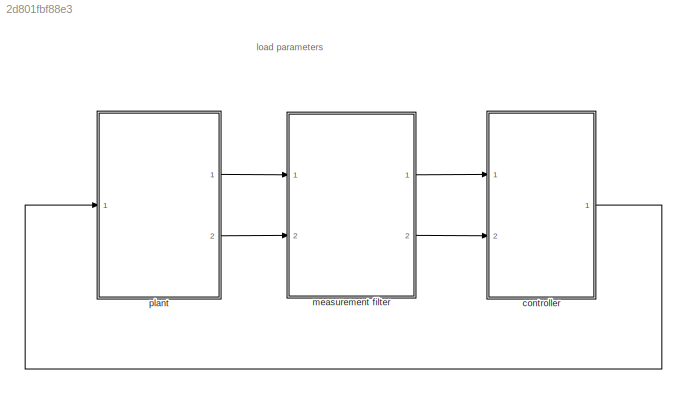
MODEL slx_2d801fbf88e3
KIND model
CONFIG AbsTol = auto
CONFIG EnableMultiTasking = on
CONFIG FixedStep = auto
CONFIG MaxStep = auto
CONFIG MinStep = auto
CONFIG RelTol = 1e-3
CONFIG SampleTimeConstraint = Unconstrained
CONFIG Solver = ode45
CONFIG SolverName = ode45
CONFIG StartTime = 0.0
CONFIG StopTime = 10.0
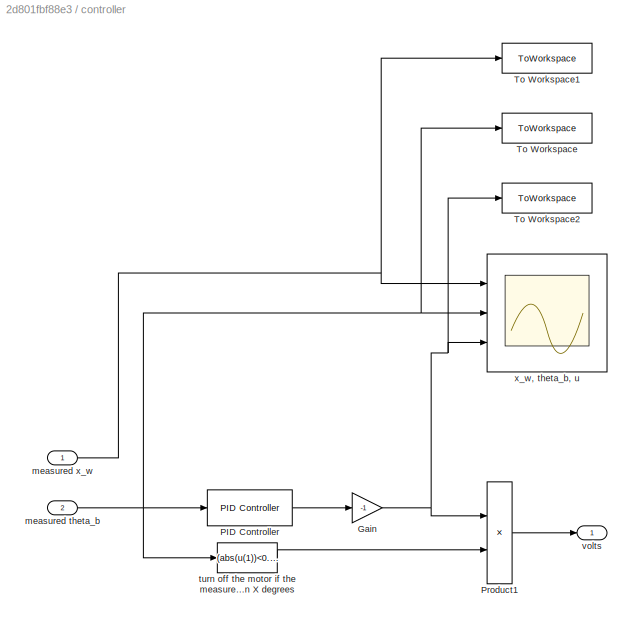
BLOCK [SubSystem] controller
  Ports = [2, 1]
  RequestExecContextInheritance = off
BLOCK [Gain] controller/Gain
  Gain = -1
  OutDataTypeStr = Inherit: Inherit via internal rule
  ParamDataTypeStr = Inherit: Inherit via internal rule
  SaturateOnIntegerOverflow = off
BLOCK [Reference] controller/PID Controller  REF=simulink/Continuous/PID Controller
  Ports = [1, 1]
  SourceBlock = simulink/Continuous/PID Controller
  SourceProductBaseCode = SL
  SourceProductName = Simulink
  SourceType = PID 1dof
BLOCK [Product] controller/Product1
  InputSameDT = off
  OutDataTypeStr = Inherit: Inherit via internal rule
  Ports = [2, 1]
  SaturateOnIntegerOverflow = off
BLOCK [ToWorkspace] controller/To Workspace
  FixptAsFi = on
  MaxDataPoints = inf
  Ports = [1]
  SampleTime = -1
  SaveFormat = Structure With Time
  VariableName = theta_b_out
BLOCK [ToWorkspace] controller/To Workspace1
  FixptAsFi = on
  MaxDataPoints = inf
  Ports = [1]
  SampleTime = -1
  SaveFormat = Structure With Time
  VariableName = x_w_out
BLOCK [ToWorkspace] controller/To Workspace2
  FixptAsFi = on
  MaxDataPoints = inf
  Ports = [1]
  SampleTime = -1
  SaveFormat = Structure With Time
  VariableName = u_out
BLOCK [Inport] controller/measured theta_b 
  IconDisplay = Port number
  Port = 2
BLOCK [Inport] controller/measured x_w
  IconDisplay = Port number
BLOCK [Fcn] controller/turn off the motor if the measured angle is greater than X degrees
  Expr = (abs(u(1))<0.75)
BLOCK [Outport] controller/volts
  IconDisplay = Port number
  VectorParamsAs1DForOutWhenUnconnected = off
BLOCK [Scope] controller/x_w, theta_b, u
  Floating = off
  NumInputPorts = 3
  Ports = [3]
  ScopeSpecificationString = Simulink.scopes.TimeScopeBlockCfg('CurrentConfiguration', extmgr.ConfigurationSet(extmgr.Configuration('Core','General UI',true),extmgr.Configuration('Core','Source UI',true),extmgr.Configuration('Sources','WiredSimulink',true),extmgr.Configuration('Visuals','Time Domain',true,'SerializedDisplays',{struct('MinYLimReal','0.9777','MaxYLimReal','1.12874','YLabelReal','','MinYLimMag','0.9777','MaxYLim...<+2753ch>
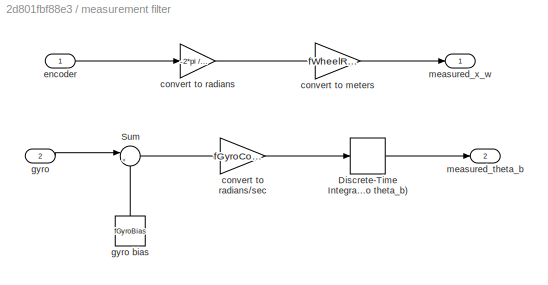
BLOCK [SubSystem] measurement filter
  Ports = [2, 2]
  RequestExecContextInheritance = off
BLOCK [DiscreteIntegrator] measurement filter/Discrete-Time Integrator (convert from theta_b_dot to theta_b)
  ICPrevOutput = DiscIntNeverNeededParam
  ICPrevScaledInput = DiscIntNeverNeededParam
  OutDataTypeStr = Inherit: Inherit via back propagation
  Ports = [1, 1]
  SampleTime = fSamplingPeriod
BLOCK [Sum] measurement filter/Sum
  IconShape = round
  InputSameDT = off
  Inputs = |+-
  OutDataTypeStr = Inherit: Inherit via internal rule
  Ports = [2, 1]
  SaturateOnIntegerOverflow = off
BLOCK [Gain] measurement filter/convert to meters
  Gain = fWheelRadius
  ParamDataTypeStr = Inherit: Inherit via internal rule
  SaturateOnIntegerOverflow = off
BLOCK [Gain] measurement filter/convert to radians
  Gain = -2*pi / iNumberOfEncoderSteps
  ParamDataTypeStr = Inherit: Inherit via internal rule
  SaturateOnIntegerOverflow = off
BLOCK [Gain] measurement filter/convert to radians//sec
  Gain = fGyroConversionFactor * pi / 180
  ParamDataTypeStr = Inherit: Inherit via internal rule
  SaturateOnIntegerOverflow = off
BLOCK [Inport] measurement filter/encoder
  IconDisplay = Port number
BLOCK [Inport] measurement filter/gyro
  IconDisplay = Port number
  Port = 2
BLOCK [Constant] measurement filter/gyro bias
  OutDataTypeStr = single
  Value = fGyroBias
BLOCK [Outport] measurement filter/measured_theta_b
  IconDisplay = Port number
  Port = 2
  VectorParamsAs1DForOutWhenUnconnected = off
BLOCK [Outport] measurement filter/measured_x_w
  IconDisplay = Port number
  VectorParamsAs1DForOutWhenUnconnected = off
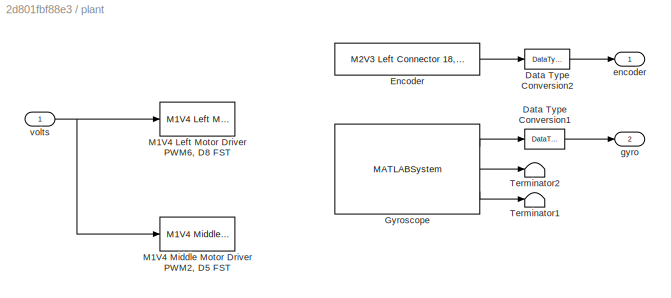
BLOCK [SubSystem] plant
  Ports = [1, 2]
  RequestExecContextInheritance = off
BLOCK [DataTypeConversion] plant/Data Type Conversion1
  OutDataTypeStr = single
  RndMeth = Floor
  SaturateOnIntegerOverflow = off
BLOCK [DataTypeConversion] plant/Data Type Conversion2
  OutDataTypeStr = single
  RndMeth = Floor
  SaturateOnIntegerOverflow = off
BLOCK [Reference] plant/Encoder  REF=MinSegLibrary_M2V3/M2V3 Left Connector 18, 19
  Ports = [0, 1]
  SourceBlock = MinSegLibrary_M2V3/M2V3 Left Connector 18, 19
  SourceProductName = Rensselaer Arduino Support Package
  SourceType = Encoder_arduino
BLOCK [MATLABSystem] plant/Gyroscope
  DLPFmode = 0
  MaskDisplay = disp('soMPU6050Gyro');\nport_label('output',1,'xvel');\nport_label('output',2,'yvel');\nport_label('output',3,'zvel');
  MaskType = soMPU6050Gyro
  Ports = [0, 3]
  System = soMPU6050Gyro
BLOCK [Reference] plant/M1V4 Left Motor Driver PWM6, D8 FST  REF=MinSegLibrary_M2V3/M1V4 Left Motor Driver
PWM6, D8 FST
  Ports = [1]
  SourceBlock = MinSegLibrary_M2V3/M1V4 Left Motor Driver\nPWM6, D8 FST
  SourceProductName = Rensselaer Arduino Support Package
BLOCK [Reference] plant/M1V4 Middle Motor Driver PWM2, D5 FST  REF=MinSegLibrary_M2V3/M1V4 Middle Motor Driver
PWM2, D5 FST
  Ports = [1]
  SourceBlock = MinSegLibrary_M2V3/M1V4 Middle Motor Driver\nPWM2, D5 FST
  SourceProductName = Rensselaer Arduino Support Package
BLOCK [Terminator] plant/Terminator1
BLOCK [Terminator] plant/Terminator2
BLOCK [Outport] plant/encoder
  IconDisplay = Port number
  VectorParamsAs1DForOutWhenUnconnected = off
BLOCK [Outport] plant/gyro
  IconDisplay = Port number
  Port = 2
  VectorParamsAs1DForOutWhenUnconnected = off
BLOCK [Inport] plant/volts
  IconDisplay = Port number
ANNOTATION (root): load parameters
NET controller/Gain:1 -> controller/Product1:1, controller/To Workspace2:1, controller/x_w, theta_b, u:3
LINE controller/PID Controller:1 -> controller/Gain:1
LINE controller/Product1:1 -> controller/volts:1
NET controller/measured theta_b :1 -> controller/PID Controller:1, controller/To Workspace:1, controller/turn off the motor if the measured angle is greater than X degrees:1, controller/x_w, theta_b, u:2
NET controller/measured x_w:1 -> controller/To Workspace1:1, controller/x_w, theta_b, u:1
LINE controller/turn off the motor if the measured angle is greater than X degrees:1 -> controller/Product1:2
LINE controller:1 -> plant:1
LINE measurement filter/Discrete-Time Integrator (convert from theta_b_dot to theta_b):1 -> measurement filter/measured_theta_b:1
LINE measurement filter/Sum:1 -> measurement filter/convert to radians//sec:1
LINE measurement filter/convert to meters:1 -> measurement filter/measured_x_w:1
LINE measurement filter/convert to radians//sec:1 -> measurement filter/Discrete-Time Integrator (convert from theta_b_dot to theta_b):1
LINE measurement filter/convert to radians:1 -> measurement filter/convert to meters:1
LINE measurement filter/encoder:1 -> measurement filter/convert to radians:1
LINE measurement filter/gyro bias:1 -> measurement filter/Sum:2
LINE measurement filter/gyro:1 -> measurement filter/Sum:1
LINE measurement filter:1 -> controller:1
LINE measurement filter:2 -> controller:2
LINE plant/Data Type Conversion1:1 -> plant/gyro:1
LINE plant/Data Type Conversion2:1 -> plant/encoder:1
LINE plant/Encoder:1 -> plant/Data Type Conversion2:1
LINE plant/Gyroscope:1 -> plant/Data Type Conversion1:1
LINE plant/Gyroscope:2 -> plant/Terminator2:1
LINE plant/Gyroscope:3 -> plant/Terminator1:1
NET plant/volts:1 -> plant/M1V4 Left Motor Driver PWM6, D8 FST:1, plant/M1V4 Middle Motor Driver PWM2, D5 FST:1
LINE plant:1 -> measurement filter:1
LINE plant:2 -> measurement filter:2
note: NET lines group one-source signal fan-out (src -> all destinations, sorted); 1:1 wires keep LINE
